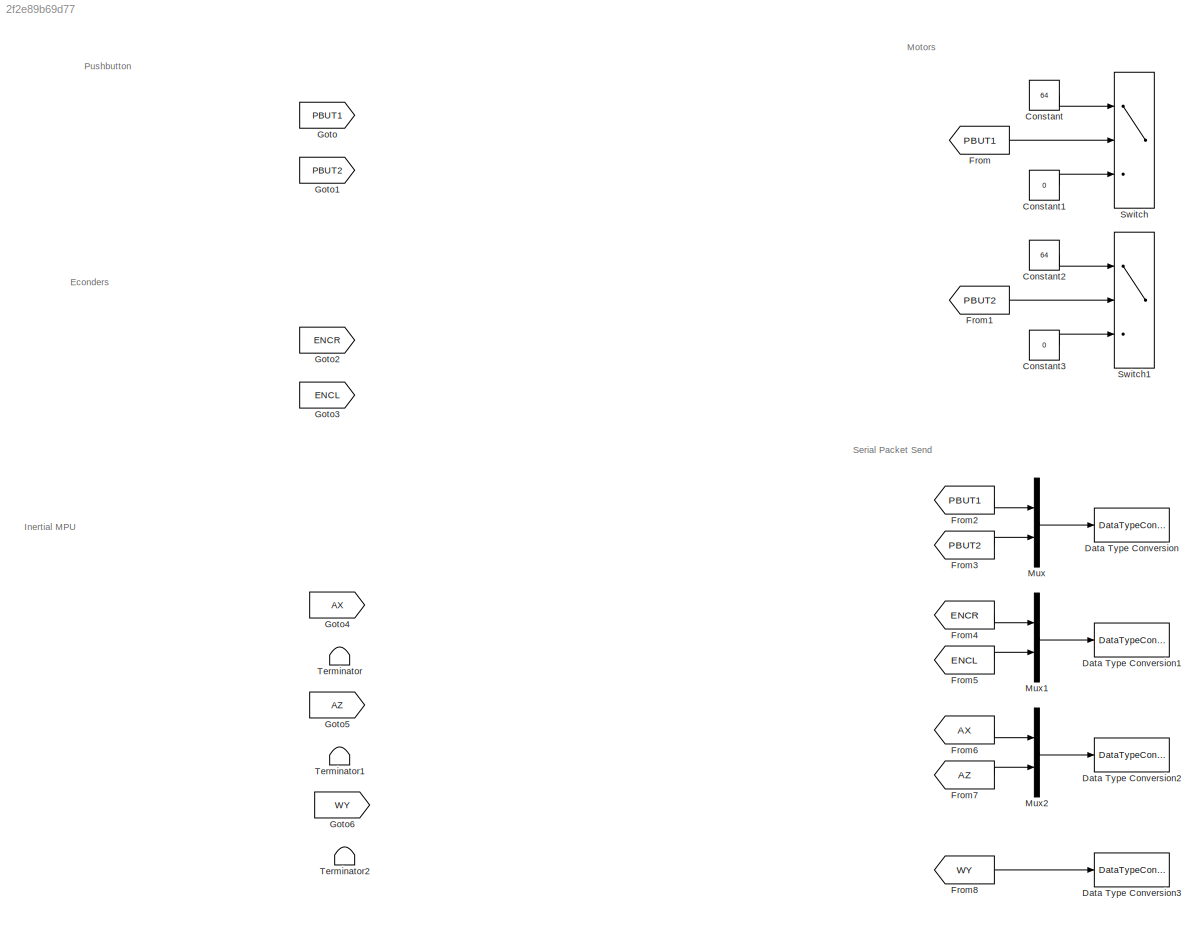
MODEL slx_2f2e89b69d77
KIND model
CONFIG AbsTol = auto
CONFIG EnableMultiTasking = off
CONFIG FixedStep = auto
CONFIG MaxStep = auto
CONFIG MinStep = auto
CONFIG RelTol = 1e-3
CONFIG SampleTimeConstraint = Unconstrained
CONFIG SolverName = VariableStepAuto
CONFIG StartTime = 0.0
CONFIG StopTime = 10.0
BLOCK [Constant] Constant
  Value = 64
BLOCK [Constant] Constant1
  Value = 0
BLOCK [Constant] Constant2
  Value = 64
BLOCK [Constant] Constant3
  Value = 0
BLOCK [DataTypeConversion] Data Type Conversion
  OutDataTypeStr = uint8
  RndMeth = Floor
  SaturateOnIntegerOverflow = off
BLOCK [DataTypeConversion] Data Type Conversion1
  OutDataTypeStr = int32
  RndMeth = Floor
  SaturateOnIntegerOverflow = off
BLOCK [DataTypeConversion] Data Type Conversion2
  OutDataTypeStr = single
  RndMeth = Floor
  SaturateOnIntegerOverflow = off
BLOCK [DataTypeConversion] Data Type Conversion3
  OutDataTypeStr = single
  RndMeth = Floor
  SaturateOnIntegerOverflow = off
BLOCK [From] From
  GotoTag = PBUT1
BLOCK [From] From1
  GotoTag = PBUT2
BLOCK [From] From2
  GotoTag = PBUT1
BLOCK [From] From3
  GotoTag = PBUT2
BLOCK [From] From4
  GotoTag = ENCR
BLOCK [From] From5
  GotoTag = ENCL
BLOCK [From] From6
  GotoTag = AX
BLOCK [From] From7
  GotoTag = AZ
BLOCK [From] From8
  GotoTag = WY
BLOCK [Goto] Goto
  GotoTag = PBUT1
BLOCK [Goto] Goto1
  GotoTag = PBUT2
BLOCK [Goto] Goto2
  GotoTag = ENCR
BLOCK [Goto] Goto3
  GotoTag = ENCL
BLOCK [Goto] Goto4
  GotoTag = AX
BLOCK [Goto] Goto5
  GotoTag = AZ
BLOCK [Goto] Goto6
  GotoTag = WY
BLOCK [Mux] Mux
  DisplayOption = bar
  Inputs = 2
BLOCK [Mux] Mux1
  DisplayOption = bar
  Inputs = 2
BLOCK [Mux] Mux2
  DisplayOption = bar
  Inputs = 2
BLOCK [Switch] Switch
  Criteria = u2 > Threshold
  InputSameDT = off
  SaturateOnIntegerOverflow = off
BLOCK [Switch] Switch1
  Criteria = u2 > Threshold
  InputSameDT = off
  SaturateOnIntegerOverflow = off
BLOCK [Terminator] Terminator
BLOCK [Terminator] Terminator1
BLOCK [Terminator] Terminator2
ANNOTATION (root): Econders
ANNOTATION (root): Inertial MPU
ANNOTATION (root): Motors
ANNOTATION (root): Pushbutton
ANNOTATION (root): Serial Packet Send
LINE Constant1:1 -> Switch:3
LINE Constant2:1 -> Switch1:1
LINE Constant3:1 -> Switch1:3
LINE Constant:1 -> Switch:1
LINE From1:1 -> Switch1:2
LINE From2:1 -> Mux:1
LINE From3:1 -> Mux:2
LINE From4:1 -> Mux1:1
LINE From5:1 -> Mux1:2
LINE From6:1 -> Mux2:1
LINE From7:1 -> Mux2:2
LINE From8:1 -> Data Type Conversion3:1
LINE From:1 -> Switch:2
LINE Mux1:1 -> Data Type Conversion1:1
LINE Mux2:1 -> Data Type Conversion2:1
LINE Mux:1 -> Data Type Conversion:1
